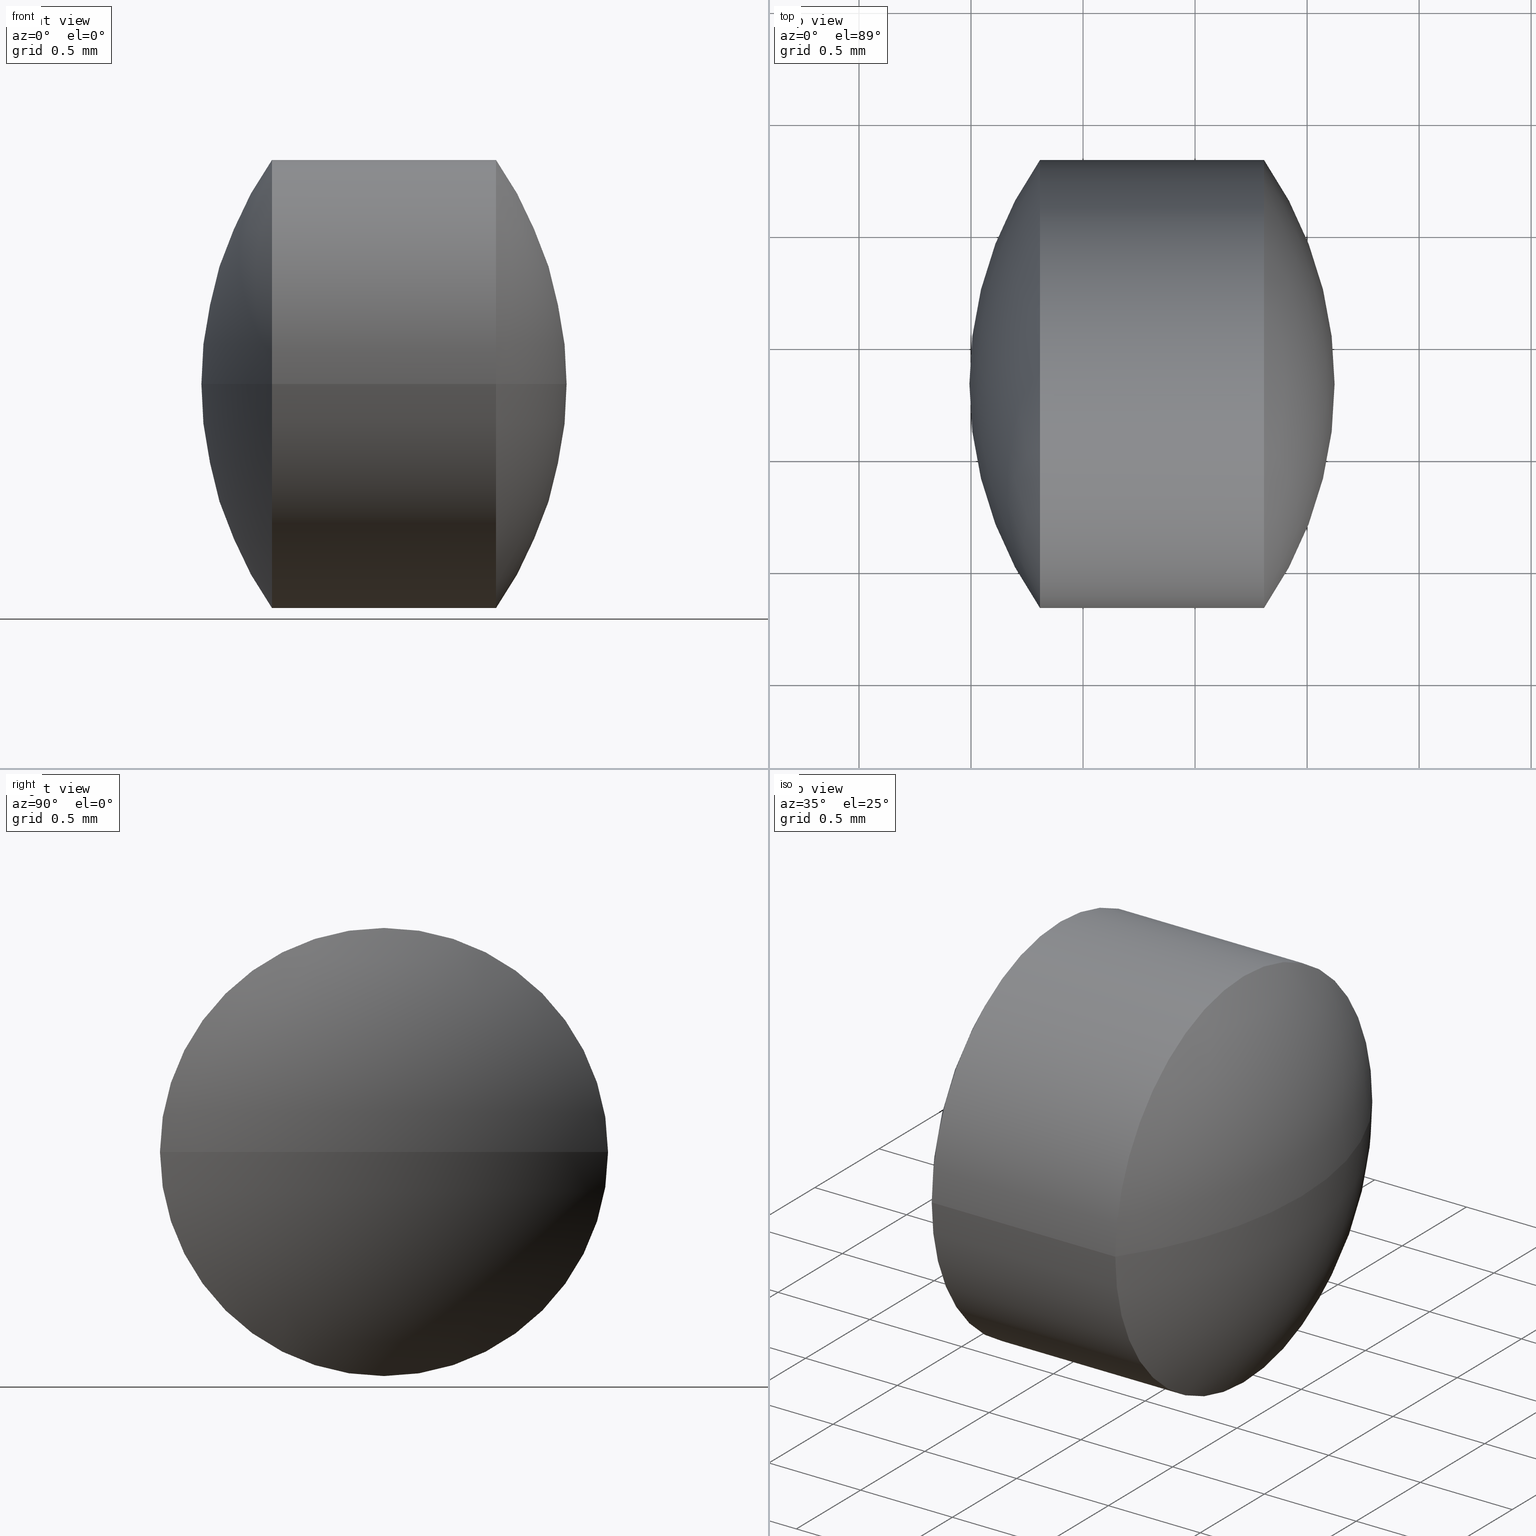
[diagram: canonical four-view strip — front | top / right | iso, engineering-drawing reading convention]
A machine part, canonical four-view strip (front | top / right | iso — engineering-drawing reading convention). The complete STEP part file that produces these views, byte-faithful:
ISO-10303-21;
HEADER;
FILE_DESCRIPTION (( 'STEP AP203' ),
    '1' );
FILE_NAME ('110000.STEP',
    '2019-06-24T01:39:02',
    ( '' ),
    ( '' ),
    'SwSTEP 2.0',
    'SolidWorks 2016',
    '' );
FILE_SCHEMA (( 'CONFIG_CONTROL_DESIGN' ));
ENDSEC;

DATA;
#1 = AXIS2_PLACEMENT_3D ( 'NONE', #105, #130, #129 ) ;
#2 = ADVANCED_FACE ( 'NONE', ( #38 ), #99, .T. ) ;
#3 = PERSON_AND_ORGANIZATION_ROLE ( 'creator' ) ;
#4 = ORIENTED_EDGE ( 'NONE', *, *, #256, .F. ) ;
#5 = APPROVAL_STATUS ( 'not_yet_approved' ) ;
#6 = ADVANCED_FACE ( 'NONE', ( #159 ), #230, .T. ) ;
#7 = PERSON_AND_ORGANIZATION ( #245, #109 ) ;
#8 = ADVANCED_BREP_SHAPE_REPRESENTATION ( '110000', ( #131, #112 ), #36 ) ;
#9 = CC_DESIGN_SECURITY_CLASSIFICATION ( #167, ( #173 ) ) ;
#10 = ORIENTED_EDGE ( 'NONE', *, *, #23, .F. ) ;
#11 = APPROVAL_DATE_TIME ( #128, #162 ) ;
#12 = CC_DESIGN_PERSON_AND_ORGANIZATION_ASSIGNMENT ( #225, #98, ( #104 ) ) ;
#13 = CARTESIAN_POINT ( 'NONE',  ( 5.877930205979845700, 3.828040395526761700, 0.0000000000000000000 ) ) ;
#14 = CARTESIAN_POINT ( 'NONE',  ( 7.307731793281237600, 3.828040395526776300, 0.0000000000000000000 ) ) ;
#15 = PERSON_AND_ORGANIZATION ( #245, #109 ) ;
#16 = DIRECTION ( 'NONE',  ( 0.0000000000000000000, -1.000000000000000000, -1.224646799147353500E-016 ) ) ;
#17 = DIRECTION ( 'NONE',  ( -1.000000000000000000, -1.026130654988835600E-014, -0.0000000000000000000 ) ) ;
#18 = DIRECTION ( 'NONE',  ( -0.0000000000000000000, 0.0000000000000000000, -1.000000000000000000 ) ) ;
#19 = APPROVAL_DATE_TIME ( #269, #26 ) ;
#20 = AXIS2_PLACEMENT_3D ( 'NONE', #137, #18, #198 ) ;
#21 = DIRECTION ( 'NONE',  ( 1.040834085585986300E-014, -1.000000000000000000, 0.0000000000000000000 ) ) ;
#22 = DATE_AND_TIME ( #144, #273 ) ;
#23 = EDGE_CURVE ( 'NONE', #247, #275, #210, .T. ) ;
#24 = LINE ( 'NONE', #272, #270 ) ;
#25 = VERTEX_POINT ( 'NONE', #116 ) ;
#26 = APPROVAL ( #242, 'δָ��' ) ;
#27 = DIRECTION ( 'NONE',  ( -0.0000000000000000000, 0.0000000000000000000, -1.000000000000000000 ) ) ;
#28 = ADVANCED_FACE ( 'NONE', ( #279 ), #284, .T. ) ;
#29 = APPROVAL_ROLE ( '' ) ;
#30 = PRODUCT_DEFINITION ( 'δ֪', '', #173, #202 ) ;
#31 = DATE_TIME_ROLE ( 'classification_date' ) ;
#32 = DATE_TIME_ROLE ( 'creation_date' ) ;
#33 = PERSON_AND_ORGANIZATION ( #245, #109 ) ;
#34 = CALENDAR_DATE ( 2019, 24, 6 ) ;
#35 = CC_DESIGN_APPROVAL ( #204, ( #167 ) ) ;
#36 =( GEOMETRIC_REPRESENTATION_CONTEXT ( 3 ) GLOBAL_UNCERTAINTY_ASSIGNED_CONTEXT ( ( #224 ) ) GLOBAL_UNIT_ASSIGNED_CONTEXT ( ( #153, #43, #65 ) ) REPRESENTATION_CONTEXT ( 'NONE', 'WORKASPACE' ) );
#37 = PRODUCT ( '110000', '110000', '', ( #285 ) ) ;
#38 = FACE_OUTER_BOUND ( 'NONE', #206, .T. ) ;
#39 = CC_DESIGN_PERSON_AND_ORGANIZATION_ASSIGNMENT ( #78, #209, ( #132 ) ) ;
#40 = DIRECTION ( 'NONE',  ( 1.040834085585986300E-014, -1.000000000000000000, 0.0000000000000000000 ) ) ;
#41 = LOCAL_TIME ( 9, 39, 2.000000000000000000, #86 ) ;
#42 = DESIGN_CONTEXT ( 'detailed design', #118, 'design' ) ;
#43 =( NAMED_UNIT ( * ) PLANE_ANGLE_UNIT ( ) SI_UNIT ( $, .RADIAN. ) );
#44 = DIRECTION ( 'NONE',  ( -1.000000000000000000, -1.026130654988835600E-014, -0.0000000000000000000 ) ) ;
#45 = PERSON_AND_ORGANIZATION ( #245, #109 ) ;
#46 = DIRECTION ( 'NONE',  ( 1.000000000000000000, 0.0000000000000000000, 0.0000000000000000000 ) ) ;
#47 = PRODUCT_RELATED_PRODUCT_CATEGORY ( 'detail', '', ( #104 ) ) ;
#48 = CC_DESIGN_APPROVAL ( #185, ( #173 ) ) ;
#49 = PERSON_AND_ORGANIZATION ( #245, #109 ) ;
#50 = CIRCLE ( 'NONE', #278, 1.000000000000088800 ) ;
#51 = LOCAL_TIME ( 9, 39, 2.000000000000000000, #163 ) ;
#52 = FACE_OUTER_BOUND ( 'NONE', #113, .T. ) ;
#53 = DIRECTION ( 'NONE',  ( 1.043935117340608100E-014, -1.000000000000000000, 0.0000000000000000000 ) ) ;
#54 = EDGE_LOOP ( 'NONE', ( #10, #147, #102 ) ) ;
#55 = ADVANCED_FACE ( 'NONE', ( #52 ), #172, .T. ) ;
#56 = PERSON_AND_ORGANIZATION ( #245, #109 ) ;
#57 = MECHANICAL_CONTEXT ( 'NONE', #80, 'mechanical' ) ;
#58 = PERSON_AND_ORGANIZATION_ROLE ( 'creator' ) ;
#59 = ADVANCED_FACE ( 'NONE', ( #218 ), #150, .T. ) ;
#60 = ORIENTED_EDGE ( 'NONE', *, *, #303, .F. ) ;
#61 = ORIENTED_EDGE ( 'NONE', *, *, #62, .F. ) ;
#62 = EDGE_CURVE ( 'NONE', #25, #275, #293, .T. ) ;
#63 = DATE_AND_TIME ( #168, #95 ) ;
#64 = DIRECTION ( 'NONE',  ( 1.040834085585980900E-014, -1.000000000000000000, 0.0000000000000000000 ) ) ;
#65 =( NAMED_UNIT ( * ) SI_UNIT ( $, .STERADIAN. ) SOLID_ANGLE_UNIT ( ) );
#66 = CALENDAR_DATE ( 2019, 24, 6 ) ;
#67 = DIRECTION ( 'NONE',  ( 0.0000000000000000000, 0.0000000000000000000, 1.000000000000000000 ) ) ;
#68 = CARTESIAN_POINT ( 'NONE',  ( 5.877930205979845700, 3.828040395526761700, 0.0000000000000000000 ) ) ;
#69 = EDGE_CURVE ( 'NONE', #294, #268, #111, .T. ) ;
#70 = CARTESIAN_POINT ( 'NONE',  ( 5.877930205979845700, 3.828040395526761700, 0.0000000000000000000 ) ) ;
#71 = ORIENTED_EDGE ( 'NONE', *, *, #233, .F. ) ;
#72 = DIRECTION ( 'NONE',  ( -1.000000000000000000, 0.0000000000000000000, 0.0000000000000000000 ) ) ;
#73 = CALENDAR_DATE ( 2019, 24, 6 ) ;
#74 = AXIS2_PLACEMENT_3D ( 'NONE', #299, #276, #156 ) ;
#75 = PERSON_AND_ORGANIZATION ( #245, #109 ) ;
#76 = ORIENTED_EDGE ( 'NONE', *, *, #148, .T. ) ;
#77 = APPROVAL_STATUS ( 'not_yet_approved' ) ;
#78 = PERSON_AND_ORGANIZATION ( #245, #109 ) ;
#79 = APPLICATION_PROTOCOL_DEFINITION ( 'international standard', 'config_control_design', 1994, #80 ) ;
#80 = APPLICATION_CONTEXT ( 'configuration controlled 3d designs of mechanical parts and assemblies' ) ;
#81 = CALENDAR_DATE ( 2019, 24, 6 ) ;
#82 = APPLICATION_PROTOCOL_DEFINITION ( 'international standard', 'config_control_design', 1994, #236 ) ;
#83 = CALENDAR_DATE ( 2019, 24, 6 ) ;
#84 = FACE_OUTER_BOUND ( 'NONE', #181, .T. ) ;
#85 = CARTESIAN_POINT ( 'NONE',  ( 5.877930205979836000, 4.828040395526855400, 1.224646799147468600E-016 ) ) ;
#86 = COORDINATED_UNIVERSAL_TIME_OFFSET ( 8, 0, .AHEAD. ) ;
#87 = CARTESIAN_POINT ( 'NONE',  ( 0.0000000000000000000, 0.0000000000000000000, 0.0000000000000000000 ) ) ;
#88 = CC_DESIGN_DATE_AND_TIME_ASSIGNMENT ( #248, #142, ( #110 ) ) ;
#89 = DIRECTION ( 'NONE',  ( 1.000000000000000000, 0.0000000000000000000, 0.0000000000000000000 ) ) ;
#90 = CARTESIAN_POINT ( 'NONE',  ( 7.622731793281324100, 3.828040395526779400, 0.0000000000000000000 ) ) ;
#91 = ORIENTED_EDGE ( 'NONE', *, *, #69, .F. ) ;
#92 = LINE ( 'NONE', #85, #126 ) ;
#93 = CC_DESIGN_PERSON_AND_ORGANIZATION_ASSIGNMENT ( #213, #188, ( #173 ) ) ;
#94 = COORDINATED_UNIVERSAL_TIME_OFFSET ( 8, 0, .AHEAD. ) ;
#95 = LOCAL_TIME ( 9, 39, 2.000000000000000000, #288 ) ;
#96 = LOCAL_TIME ( 9, 39, 2.000000000000000000, #135 ) ;
#97 = CC_DESIGN_PERSON_AND_ORGANIZATION_ASSIGNMENT ( #7, #124, ( #37 ) ) ;
#98 = PERSON_AND_ORGANIZATION_ROLE ( 'design_owner' ) ;
#99 = SPHERICAL_SURFACE ( 'NONE', #208, 1.744801587301508400 ) ;
#100 = APPROVAL_ROLE ( '' ) ;
#101 = COORDINATED_UNIVERSAL_TIME_OFFSET ( 8, 0, .AHEAD. ) ;
#102 = ORIENTED_EDGE ( 'NONE', *, *, #62, .T. ) ;
#103 = CIRCLE ( 'NONE', #219, 1.744801587301478200 ) ;
#104 = PRODUCT ( '110000', '110000', '', ( #57 ) ) ;
#105 = CARTESIAN_POINT ( 'NONE',  ( 6.307731793281237600, 3.828040395526765700, 0.0000000000000000000 ) ) ;
#106 = AXIS2_PLACEMENT_3D ( 'NONE', #13, #250, #40 ) ;
#107 = LOCAL_TIME ( 9, 39, 2.000000000000000000, #203 ) ;
#108 = CARTESIAN_POINT ( 'NONE',  ( 7.307731793281226900, 4.828040395526865100, 1.224646799147462700E-016 ) ) ;
#109 = ORGANIZATION ( 'δָ��', 'δָ��', '' ) ;
#110 = SECURITY_CLASSIFICATION ( '', '', #216 ) ;
#111 = CIRCLE ( 'NONE', #292, 1.000000000000088800 ) ;
#112 = AXIS2_PLACEMENT_3D ( 'NONE', #195, #178, #89 ) ;
#113 = EDGE_LOOP ( 'NONE', ( #139, #302, #295, #161 ) ) ;
#114 = PERSON_AND_ORGANIZATION ( #245, #109 ) ;
#115 = PERSON_AND_ORGANIZATION ( #245, #109 ) ;
#116 = CARTESIAN_POINT ( 'NONE',  ( 6.307731793281226900, 4.828040395526875800, 0.0000000000000000000 ) ) ;
#117 = DIRECTION ( 'NONE',  ( -0.0000000000000000000, 0.0000000000000000000, 1.000000000000000000 ) ) ;
#118 = APPLICATION_CONTEXT ( 'configuration controlled 3d designs of mechanical parts and assemblies' ) ;
#119 = ORIENTED_EDGE ( 'NONE', *, *, #199, .F. ) ;
#120 = DIRECTION ( 'NONE',  ( -1.043935117340589500E-014, 1.000000000000000000, 0.0000000000000000000 ) ) ;
#121 = APPROVAL_DATE_TIME ( #63, #204 ) ;
#122 = APPROVAL_STATUS ( 'not_yet_approved' ) ;
#123 = CC_DESIGN_PERSON_AND_ORGANIZATION_ASSIGNMENT ( #266, #239, ( #173 ) ) ;
#124 = PERSON_AND_ORGANIZATION_ROLE ( 'design_owner' ) ;
#125 = APPROVAL_ROLE ( '' ) ;
#126 = VECTOR ( 'NONE', #220, 1000.000000000000000 ) ;
#127 = ORIENTED_EDGE ( 'NONE', *, *, #199, .T. ) ;
#128 = DATE_AND_TIME ( #274, #160 ) ;
#129 = DIRECTION ( 'NONE',  ( 1.040834085585980900E-014, -1.000000000000000000, 0.0000000000000000000 ) ) ;
#130 = DIRECTION ( 'NONE',  ( -1.000000000000000000, -1.026130654988835600E-014, -0.0000000000000000000 ) ) ;
#131 = MANIFOLD_SOLID_BREP ( '��ת1', #174 ) ;
#132 = PRODUCT_DEFINITION_FORMATION_WITH_SPECIFIED_SOURCE ( '�κ�', '', #37, .NOT_KNOWN. ) ;
#133 = APPROVAL_PERSON_ORGANIZATION ( #182, #204, #215 ) ;
#134 = CALENDAR_DATE ( 2019, 24, 6 ) ;
#135 = COORDINATED_UNIVERSAL_TIME_OFFSET ( 8, 0, .AHEAD. ) ;
#136 = CC_DESIGN_PERSON_AND_ORGANIZATION_ASSIGNMENT ( #49, #243, ( #110 ) ) ;
#137 = CARTESIAN_POINT ( 'NONE',  ( 7.737533380582644500, 3.828040395526780800, 0.0000000000000000000 ) ) ;
#138 = CIRCLE ( 'NONE', #300, 1.744801587301477700 ) ;
#139 = ORIENTED_EDGE ( 'NONE', *, *, #69, .T. ) ;
#140 = APPROVAL ( #77, 'δָ��' ) ;
#141 = APPROVAL_STATUS ( 'not_yet_approved' ) ;
#142 = DATE_TIME_ROLE ( 'classification_date' ) ;
#143 = SECURITY_CLASSIFICATION_LEVEL ( 'unclassified' ) ;
#144 = CALENDAR_DATE ( 2019, 24, 6 ) ;
#145 = DATE_AND_TIME ( #175, #107 ) ;
#146 = APPROVAL_STATUS ( 'not_yet_approved' ) ;
#147 = ORIENTED_EDGE ( 'NONE', *, *, #192, .T. ) ;
#148 = EDGE_CURVE ( 'NONE', #184, #294, #103, .T. ) ;
#149 = CC_DESIGN_SECURITY_CLASSIFICATION ( #110, ( #132 ) ) ;
#150 = SPHERICAL_SURFACE ( 'NONE', #251, 1.744801587301477900 ) ;
#151 = CC_DESIGN_PERSON_AND_ORGANIZATION_ASSIGNMENT ( #75, #3, ( #30 ) ) ;
#152 = DATE_AND_TIME ( #134, #196 ) ;
#153 =( LENGTH_UNIT ( ) NAMED_UNIT ( * ) SI_UNIT ( .MILLI., .METRE. ) );
#154 = DATE_AND_TIME ( #34, #304 ) ;
#155 = DIRECTION ( 'NONE',  ( -1.000000000000000000, -1.026130654988835600E-014, -0.0000000000000000000 ) ) ;
#156 = DIRECTION ( 'NONE',  ( 0.0000000000000000000, 1.000000000000000000, 1.224646799147353000E-016 ) ) ;
#157 = CC_DESIGN_APPROVAL ( #140, ( #30 ) ) ;
#158 = DIRECTION ( 'NONE',  ( -0.0000000000000000000, 0.0000000000000000000, 1.000000000000000000 ) ) ;
#159 = FACE_OUTER_BOUND ( 'NONE', #223, .T. ) ;
#160 = LOCAL_TIME ( 9, 39, 2.000000000000000000, #101 ) ;
#161 = ORIENTED_EDGE ( 'NONE', *, *, #217, .F. ) ;
#162 = APPROVAL ( #141, 'δָ��' ) ;
#163 = COORDINATED_UNIVERSAL_TIME_OFFSET ( 8, 0, .AHEAD. ) ;
#164 = CARTESIAN_POINT ( 'NONE',  ( 7.737533380582644500, 3.828040395526780800, 0.0000000000000000000 ) ) ;
#165 = APPLICATION_CONTEXT ( 'configuration controlled 3d designs of mechanical parts and assemblies' ) ;
#166 = DATE_TIME_ROLE ( 'creation_date' ) ;
#167 = SECURITY_CLASSIFICATION ( '', '', #143 ) ;
#168 = CALENDAR_DATE ( 2019, 24, 6 ) ;
#169 = APPLICATION_PROTOCOL_DEFINITION ( 'international standard', 'config_control_design', 1994, #118 ) ;
#170 = APPROVAL_PERSON_ORGANIZATION ( #115, #26, #187 ) ;
#171 = APPROVAL ( #5, 'δָ��' ) ;
#172 = CYLINDRICAL_SURFACE ( 'NONE', #281, 1.000000000000094100 ) ;
#173 = PRODUCT_DEFINITION_FORMATION_WITH_SPECIFIED_SOURCE ( '�κ�', '', #104, .NOT_KNOWN. ) ;
#174 = CLOSED_SHELL ( 'NONE', ( #55, #6, #2, #28, #59, #290 ) ) ;
#175 = CALENDAR_DATE ( 2019, 24, 6 ) ;
#176 = CARTESIAN_POINT ( 'NONE',  ( 5.992731793281135900, 3.828040395526763000, 0.0000000000000000000 ) ) ;
#177 = APPROVAL_PERSON_ORGANIZATION ( #45, #140, #125 ) ;
#178 = DIRECTION ( 'NONE',  ( 0.0000000000000000000, 0.0000000000000000000, 1.000000000000000000 ) ) ;
#179 = DIRECTION ( 'NONE',  ( -1.000000000000000000, -1.026130654988835600E-014, -0.0000000000000000000 ) ) ;
#180 = CARTESIAN_POINT ( 'NONE',  ( 5.877930205979845700, 3.828040395526761700, 0.0000000000000000000 ) ) ;
#181 = EDGE_LOOP ( 'NONE', ( #60, #127, #231, #4 ) ) ;
#182 = PERSON_AND_ORGANIZATION ( #245, #109 ) ;
#183 = CC_DESIGN_PERSON_AND_ORGANIZATION_ASSIGNMENT ( #33, #264, ( #167 ) ) ;
#184 = VERTEX_POINT ( 'NONE', #90 ) ;
#185 = APPROVAL ( #146, 'δָ��' ) ;
#186 = LOCAL_TIME ( 9, 39, 2.000000000000000000, #257 ) ;
#187 = APPROVAL_ROLE ( '' ) ;
#188 = PERSON_AND_ORGANIZATION_ROLE ( 'creator' ) ;
#189 = PRODUCT_DEFINITION_SHAPE ( 'NONE', 'NONE',  #30 ) ;
#190 = CC_DESIGN_PERSON_AND_ORGANIZATION_ASSIGNMENT ( #296, #287, ( #234 ) ) ;
#191 = SHAPE_DEFINITION_REPRESENTATION ( #240, #8 ) ;
#192 = EDGE_CURVE ( 'NONE', #247, #25, #235, .T. ) ;
#193 = CIRCLE ( 'NONE', #1, 1.000000000000099300 ) ;
#194 = CARTESIAN_POINT ( 'NONE',  ( 7.307731793281247300, 2.828040395526687500, 0.0000000000000000000 ) ) ;
#195 = CARTESIAN_POINT ( 'NONE',  ( 0.0000000000000000000, 0.0000000000000000000, 0.0000000000000000000 ) ) ;
#196 = LOCAL_TIME ( 9, 39, 2.000000000000000000, #207 ) ;
#197 = CYLINDRICAL_SURFACE ( 'NONE', #106, 1.000000000000094100 ) ;
#198 = DIRECTION ( 'NONE',  ( -1.043935117340589500E-014, 1.000000000000000000, 0.0000000000000000000 ) ) ;
#199 = EDGE_CURVE ( 'NONE', #268, #294, #50, .T. ) ;
#200 = CARTESIAN_POINT ( 'NONE',  ( 7.737533380582644500, 3.828040395526780800, 0.0000000000000000000 ) ) ;
#201 = DATE_AND_TIME ( #81, #41 ) ;
#202 = DESIGN_CONTEXT ( 'detailed design', #165, 'design' ) ;
#203 = COORDINATED_UNIVERSAL_TIME_OFFSET ( 8, 0, .AHEAD. ) ;
#204 = APPROVAL ( #122, 'δָ��' ) ;
#205 = CARTESIAN_POINT ( 'NONE',  ( 6.307731793281237600, 3.828040395526765700, 0.0000000000000000000 ) ) ;
#206 = EDGE_LOOP ( 'NONE', ( #254, #246, #61 ) ) ;
#207 = COORDINATED_UNIVERSAL_TIME_OFFSET ( 8, 0, .AHEAD. ) ;
#208 = AXIS2_PLACEMENT_3D ( 'NONE', #164, #27, #120 ) ;
#209 = PERSON_AND_ORGANIZATION_ROLE ( 'design_supplier' ) ;
#210 = CIRCLE ( 'NONE', #74, 1.744801587301508800 ) ;
#211 = CC_DESIGN_APPROVAL ( #162, ( #234 ) ) ;
#212 = CC_DESIGN_DATE_AND_TIME_ASSIGNMENT ( #22, #31, ( #167 ) ) ;
#213 = PERSON_AND_ORGANIZATION ( #245, #109 ) ;
#214 = PERSON_AND_ORGANIZATION ( #245, #109 ) ;
#215 = APPROVAL_ROLE ( '' ) ;
#216 = SECURITY_CLASSIFICATION_LEVEL ( 'unclassified' ) ;
#217 = EDGE_CURVE ( 'NONE', #294, #247, #24, .T. ) ;
#218 = FACE_OUTER_BOUND ( 'NONE', #271, .T. ) ;
#219 = AXIS2_PLACEMENT_3D ( 'NONE', #68, #301, #72 ) ;
#220 = DIRECTION ( 'NONE',  ( -1.000000000000000000, -1.026130654988835600E-014, -0.0000000000000000000 ) ) ;
#221 = APPROVAL_PERSON_ORGANIZATION ( #56, #162, #29 ) ;
#222 = CARTESIAN_POINT ( 'NONE',  ( 5.877930205979845700, 3.828040395526761700, 0.0000000000000000000 ) ) ;
#223 = EDGE_LOOP ( 'NONE', ( #238, #255, #91 ) ) ;
#224 = UNCERTAINTY_MEASURE_WITH_UNIT (LENGTH_MEASURE( 1.000000000000000100E-005 ), #153, 'distance_accuracy_value', 'NONE');
#225 = PERSON_AND_ORGANIZATION ( #245, #109 ) ;
#226 = DIRECTION ( 'NONE',  ( 1.040834085585991800E-014, -1.000000000000000000, 0.0000000000000000000 ) ) ;
#227 = DIRECTION ( 'NONE',  ( 1.043935117340608100E-014, -1.000000000000000000, 0.0000000000000000000 ) ) ;
#228 = AXIS2_PLACEMENT_3D ( 'NONE', #262, #117, #53 ) ;
#229 = CARTESIAN_POINT ( 'NONE',  ( 7.307731793281237600, 3.828040395526776300, 0.0000000000000000000 ) ) ;
#230 = SPHERICAL_SURFACE ( 'NONE', #228, 1.744801587301477900 ) ;
#231 = ORIENTED_EDGE ( 'NONE', *, *, #217, .T. ) ;
#232 = APPROVAL_DATE_TIME ( #145, #171 ) ;
#233 = EDGE_CURVE ( 'NONE', #184, #268, #138, .T. ) ;
#234 = PRODUCT_DEFINITION ( 'δ֪', '', #132, #42 ) ;
#235 = CIRCLE ( 'NONE', #283, 1.000000000000099300 ) ;
#236 = APPLICATION_CONTEXT ( 'configuration controlled 3d designs of mechanical parts and assemblies' ) ;
#237 = CC_DESIGN_DATE_AND_TIME_ASSIGNMENT ( #152, #166, ( #30 ) ) ;
#238 = ORIENTED_EDGE ( 'NONE', *, *, #148, .F. ) ;
#239 = PERSON_AND_ORGANIZATION_ROLE ( 'design_supplier' ) ;
#240 = PRODUCT_DEFINITION_SHAPE ( 'NONE', 'NONE',  #234 ) ;
#241 = APPROVAL_PERSON_ORGANIZATION ( #214, #171, #289 ) ;
#242 = APPROVAL_STATUS ( 'not_yet_approved' ) ;
#243 = PERSON_AND_ORGANIZATION_ROLE ( 'classification_officer' ) ;
#244 = CC_DESIGN_DATE_AND_TIME_ASSIGNMENT ( #154, #32, ( #234 ) ) ;
#245 = PERSON ( 'δָ��', 'δָ��', 'δָ��', ('δָ��'), ('δָ��'), ('δָ��') ) ;
#246 = ORIENTED_EDGE ( 'NONE', *, *, #23, .T. ) ;
#247 = VERTEX_POINT ( 'NONE', #297 ) ;
#248 = DATE_AND_TIME ( #73, #186 ) ;
#249 = DIRECTION ( 'NONE',  ( 1.040834085585991800E-014, -1.000000000000000000, 0.0000000000000000000 ) ) ;
#250 = DIRECTION ( 'NONE',  ( -1.000000000000000000, -1.026130654988835600E-014, -0.0000000000000000000 ) ) ;
#251 = AXIS2_PLACEMENT_3D ( 'NONE', #70, #252, #227 ) ;
#252 = DIRECTION ( 'NONE',  ( -0.0000000000000000000, 0.0000000000000000000, 1.000000000000000000 ) ) ;
#253 = CC_DESIGN_PERSON_AND_ORGANIZATION_ASSIGNMENT ( #114, #58, ( #132 ) ) ;
#254 = ORIENTED_EDGE ( 'NONE', *, *, #256, .T. ) ;
#255 = ORIENTED_EDGE ( 'NONE', *, *, #233, .T. ) ;
#256 = EDGE_CURVE ( 'NONE', #25, #247, #193, .T. ) ;
#257 = COORDINATED_UNIVERSAL_TIME_OFFSET ( 8, 0, .AHEAD. ) ;
#258 = APPROVAL_PERSON_ORGANIZATION ( #15, #185, #100 ) ;
#259 = CC_DESIGN_APPROVAL ( #171, ( #132 ) ) ;
#260 = DIRECTION ( 'NONE',  ( -1.000000000000000000, -1.026130654988835600E-014, -0.0000000000000000000 ) ) ;
#261 = APPROVAL_DATE_TIME ( #305, #140 ) ;
#262 = CARTESIAN_POINT ( 'NONE',  ( 5.877930205979845700, 3.828040395526761700, 0.0000000000000000000 ) ) ;
#263 = DIRECTION ( 'NONE',  ( 1.000000000000000000, 0.0000000000000000000, 0.0000000000000000000 ) ) ;
#264 = PERSON_AND_ORGANIZATION_ROLE ( 'classification_officer' ) ;
#265 = APPLICATION_PROTOCOL_DEFINITION ( 'international standard', 'config_control_design', 1994, #165 ) ;
#266 = PERSON_AND_ORGANIZATION ( #245, #109 ) ;
#267 = AXIS2_PLACEMENT_3D ( 'NONE', #200, #158, #46 ) ;
#268 = VERTEX_POINT ( 'NONE', #108 ) ;
#269 = DATE_AND_TIME ( #83, #96 ) ;
#270 = VECTOR ( 'NONE', #155, 1000.000000000000000 ) ;
#271 = EDGE_LOOP ( 'NONE', ( #71, #76, #119 ) ) ;
#272 = CARTESIAN_POINT ( 'NONE',  ( 5.877930205979856400, 2.828040395526667500, 0.0000000000000000000 ) ) ;
#273 = LOCAL_TIME ( 9, 39, 2.000000000000000000, #94 ) ;
#274 = CALENDAR_DATE ( 2019, 24, 6 ) ;
#275 = VERTEX_POINT ( 'NONE', #176 ) ;
#276 = DIRECTION ( 'NONE',  ( -1.256647622139054500E-030, 1.224646799147353200E-016, -1.000000000000000000 ) ) ;
#277 = CC_DESIGN_APPROVAL ( #26, ( #110 ) ) ;
#278 = AXIS2_PLACEMENT_3D ( 'NONE', #14, #44, #249 ) ;
#279 = FACE_OUTER_BOUND ( 'NONE', #54, .T. ) ;
#280 = APPROVAL_DATE_TIME ( #201, #185 ) ;
#281 = AXIS2_PLACEMENT_3D ( 'NONE', #180, #17, #21 ) ;
#282 = COORDINATED_UNIVERSAL_TIME_OFFSET ( 8, 0, .AHEAD. ) ;
#283 = AXIS2_PLACEMENT_3D ( 'NONE', #205, #260, #64 ) ;
#284 = SPHERICAL_SURFACE ( 'NONE', #20, 1.744801587301508400 ) ;
#285 = MECHANICAL_CONTEXT ( 'NONE', #236, 'mechanical' ) ;
#286 = AXIS2_PLACEMENT_3D ( 'NONE', #87, #67, #263 ) ;
#287 = PERSON_AND_ORGANIZATION_ROLE ( 'creator' ) ;
#288 = COORDINATED_UNIVERSAL_TIME_OFFSET ( 8, 0, .AHEAD. ) ;
#289 = APPROVAL_ROLE ( '' ) ;
#290 = ADVANCED_FACE ( 'NONE', ( #84 ), #197, .T. ) ;
#291 = PRODUCT_RELATED_PRODUCT_CATEGORY ( 'detail', '', ( #37 ) ) ;
#292 = AXIS2_PLACEMENT_3D ( 'NONE', #229, #179, #226 ) ;
#293 = CIRCLE ( 'NONE', #267, 1.744801587301508400 ) ;
#294 = VERTEX_POINT ( 'NONE', #194 ) ;
#295 = ORIENTED_EDGE ( 'NONE', *, *, #192, .F. ) ;
#296 = PERSON_AND_ORGANIZATION ( #245, #109 ) ;
#297 = CARTESIAN_POINT ( 'NONE',  ( 6.307731793281247300, 2.828040395526656400, -1.224646799147487300E-016 ) ) ;
#298 = DIRECTION ( 'NONE',  ( 1.256647622139054500E-030, -1.224646799147353200E-016, 1.000000000000000000 ) ) ;
#299 = CARTESIAN_POINT ( 'NONE',  ( 7.737533380582644500, 3.828040395526780800, 0.0000000000000000000 ) ) ;
#300 = AXIS2_PLACEMENT_3D ( 'NONE', #222, #298, #16 ) ;
#301 = DIRECTION ( 'NONE',  ( 0.0000000000000000000, 0.0000000000000000000, -1.000000000000000000 ) ) ;
#302 = ORIENTED_EDGE ( 'NONE', *, *, #303, .T. ) ;
#303 = EDGE_CURVE ( 'NONE', #268, #25, #92, .T. ) ;
#304 = LOCAL_TIME ( 9, 39, 2.000000000000000000, #282 ) ;
#305 = DATE_AND_TIME ( #66, #51 ) ;
ENDSEC;
END-ISO-10303-21;
